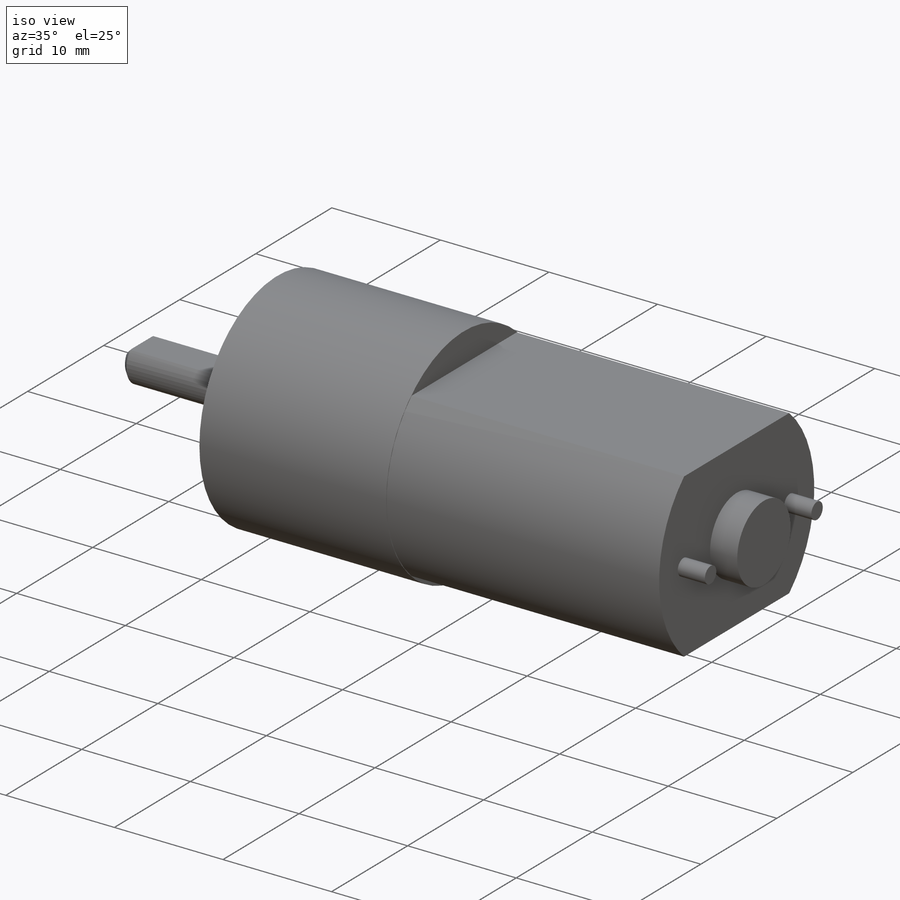
[diagram: iso view]
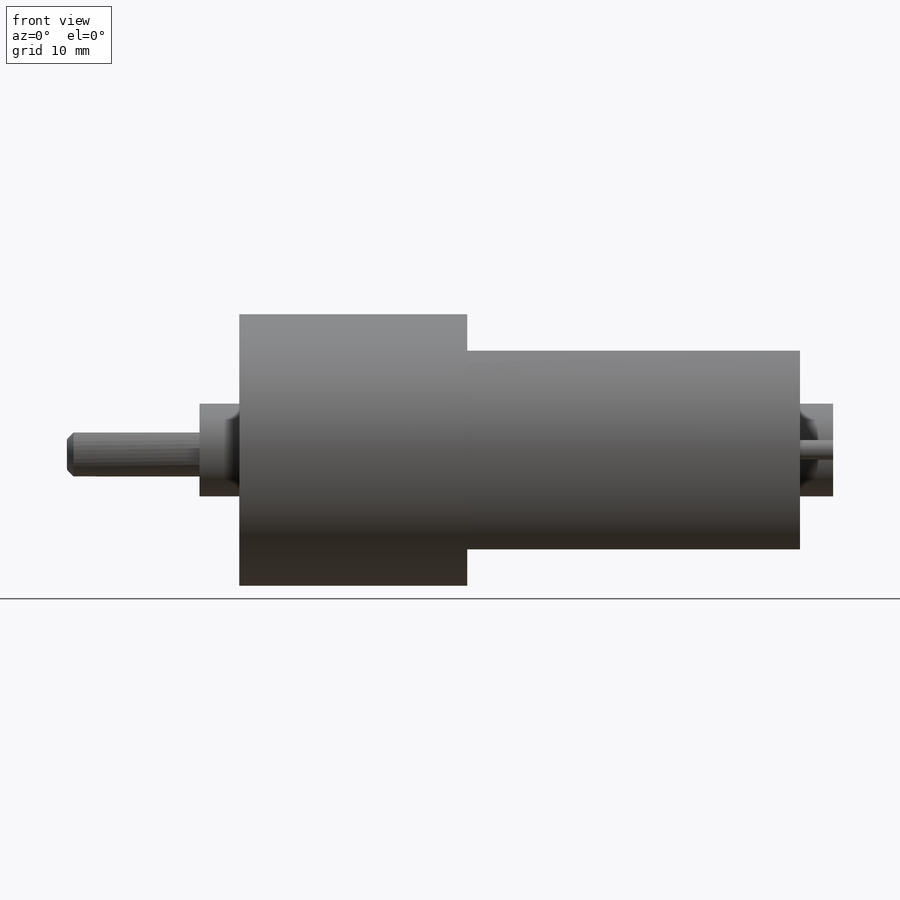
[diagram: front view]
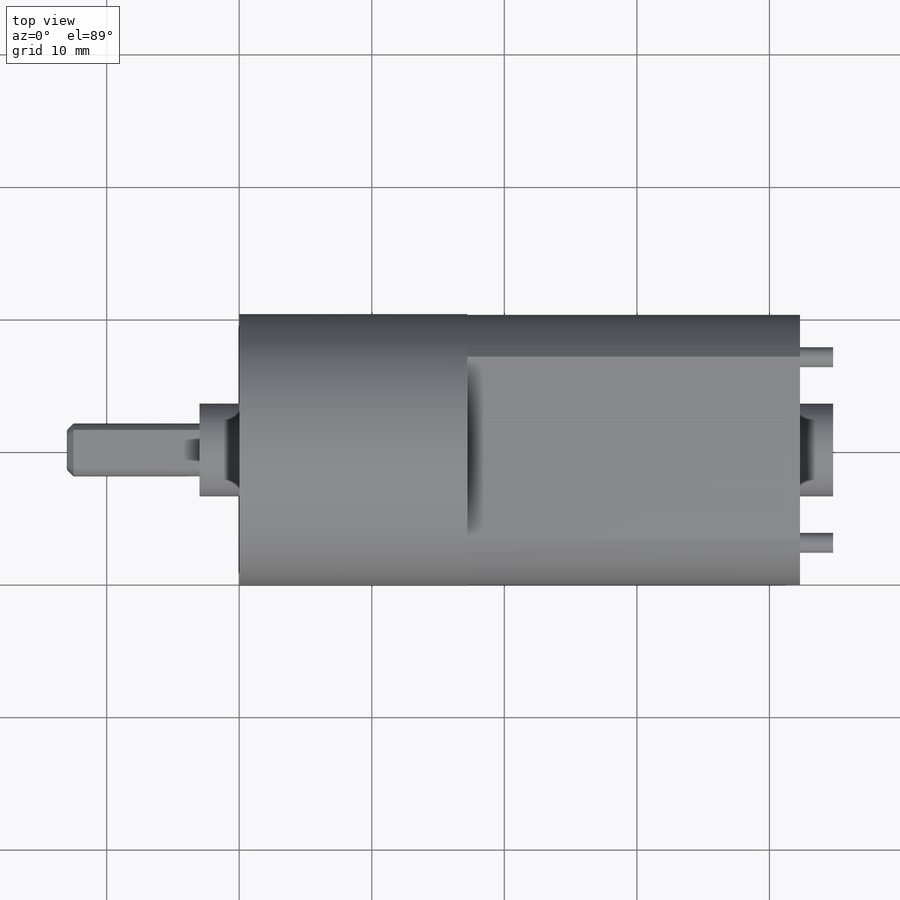
[diagram: top view]
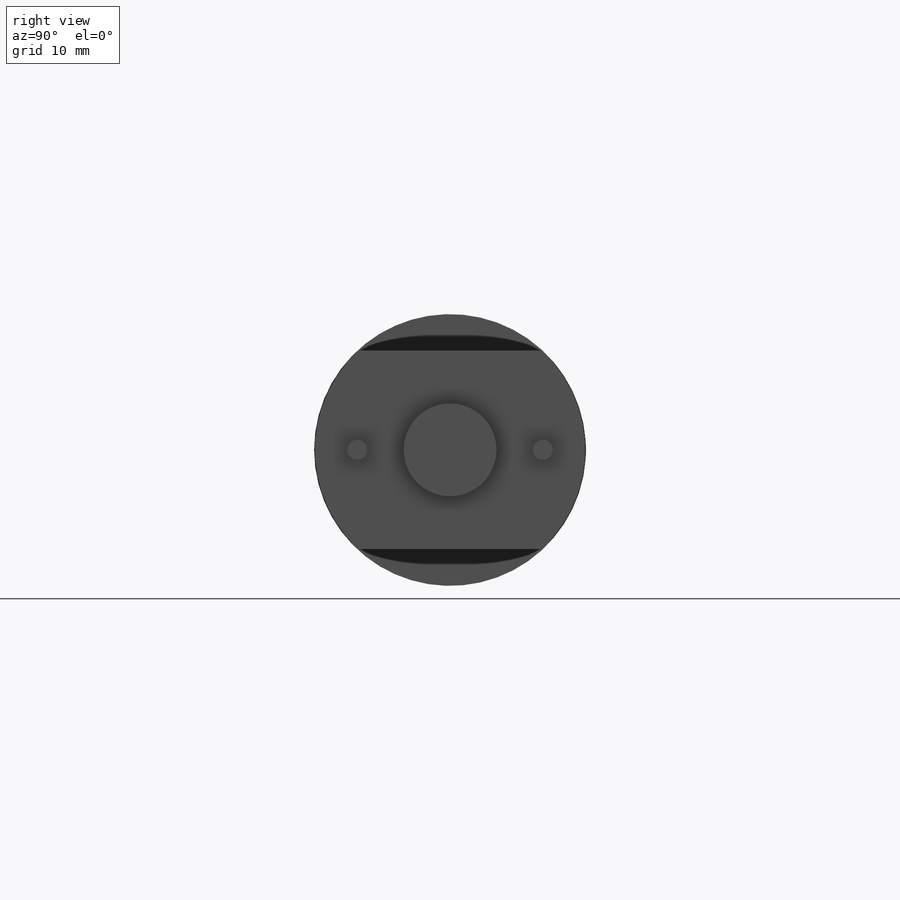
[diagram: right view]
SOLIDWORKS PART (.sldprt)
format: sldprt  version: not decoded by parser v0  size: 314,880 bytes
history: native  units: mm
features: sketch x7, extrude x6, chamfer x2, fillet x2, material x1, cut_extrude x1 (+11 scaffold rows collapsed)
feature tree (30):
  scaffold x11  (default folders/planes/origin — collapsed)
  material  "6061 Alloy"
  sketch  "Sketch1"  dims[D1=20.5mm]
  extrude  "Boss-Extrude1"  Depth=17.2mm
  sketch  "Sketch2"  dims[c1.D1=10.2mm c1.D2=~14.83563mm c2.D2=~1.007342deg c3.D2=15.0mm]
  extrude  "Boss-Extrude2"  Depth=25.1mm
  sketch  "Sketch4"  dims[D1=7.0mm]
  extrude  "Boss-Extrude3"  Depth=3mm
  sketch  "Sketch5"  dims[D1=2.0mm D2=3.0mm]
  extrude  "Boss-Extrude4"  Depth=10mm
  chamfer  "Chamfer1"  Distance=0.5mm Angle=45deg
  fillet  "Fillet1"  Radius=0.25mm
  fillet  "Fillet2"  Radius=0.5mm
  sketch  "Sketch6"  dims[D1=7.0mm]
  extrude  "Boss-Extrude5"  Depth=2.5mm
  sketch  "Sketch7"  dims[D1=1.5mm D2=14.0mm]
  extrude  "Boss-Extrude6"  Depth=2.5mm
  sketch  "Sketch8"  dims[D1=15.0mm D2=2.5mm]
  cut_extrude  "Cut-Extrude1"  Depth=1mm
  chamfer  "Chamfer2"  Distance=0.2mm Angle=45deg
decode coverage: 18 of 18 modeling features carry decoded parameters
note: ~ marks probable driven/reference dimensions
note: suppression state not decoded; provenance and decode notes live in map.json
